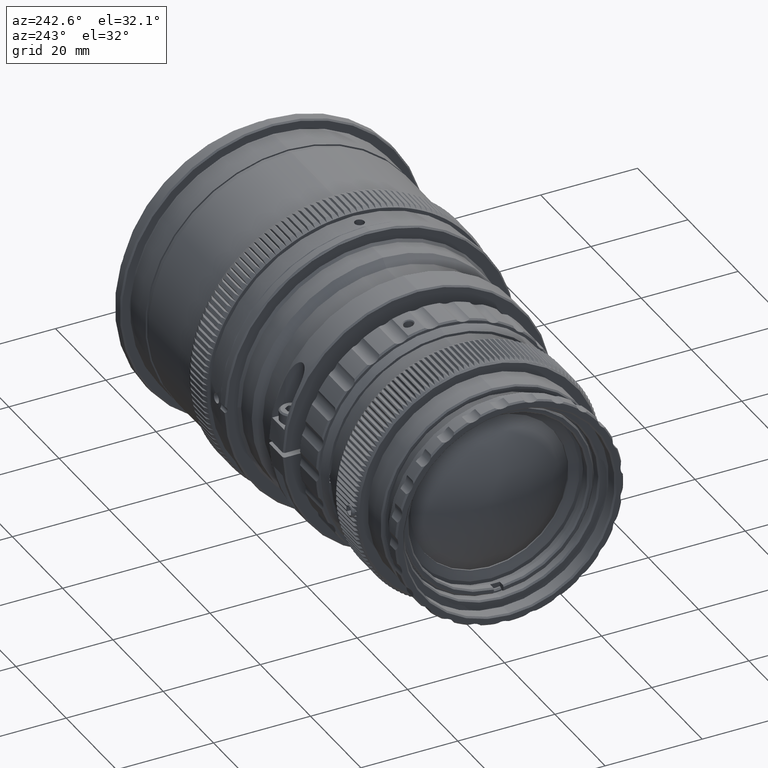
[diagram: clean part render]
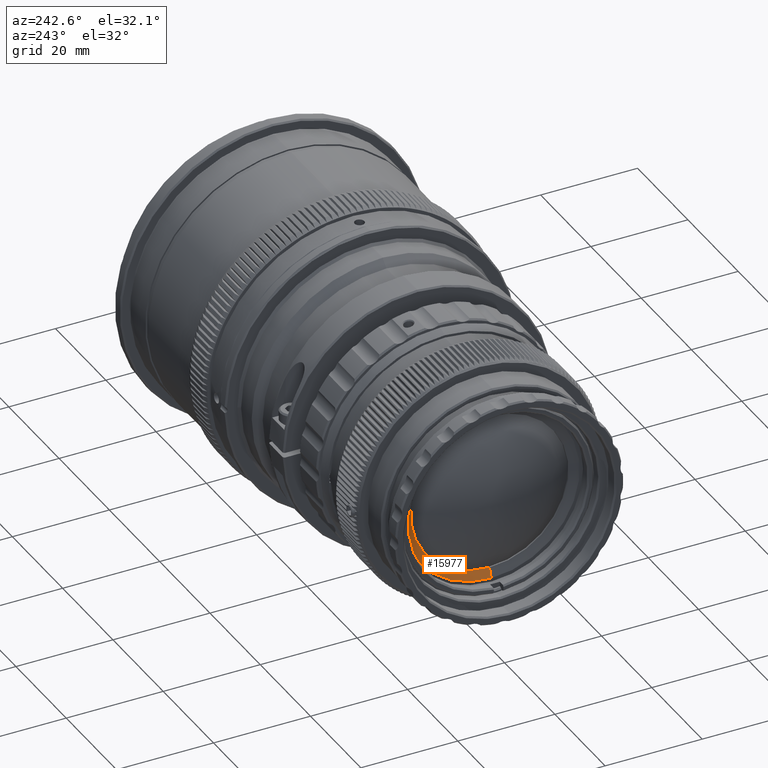
[diagram: same view with one face highlighted and labeled with its STEP entity id]
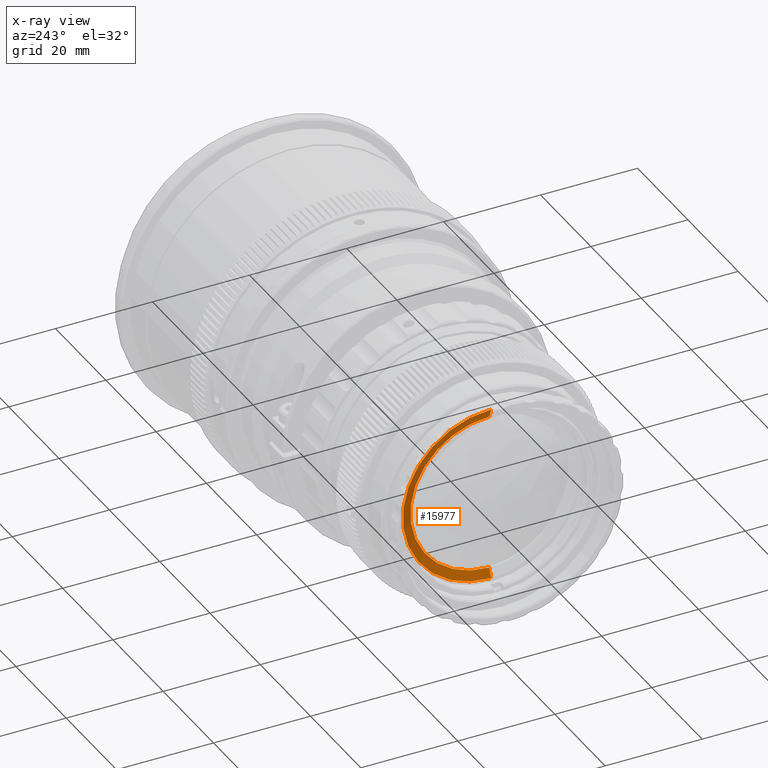
[diagram: x-ray of the same camera — body ghosted, the highlighted face saturated]
A machine part, auxiliary view. The second image highlights one B-rep face of the part: STEP entity #15977.
The next image is the same camera in x-ray: the body ghosted, the highlighted face saturated — about 0% of this face is hidden behind the body in this view.
In plain terms, the highlighted conical surface has half-angle 70 deg.
Its self-contained STEP definition (entity closure, byte-faithful):
#1714 = VECTOR ( 'NONE', #54373, 1000.000000000000100 ) ;
#5786 = DIRECTION ( 'NONE',  ( -1.000000000000000000, 0.0000000000000000000, 0.0000000000000000000 ) ) ;
#8961 = EDGE_CURVE ( 'NONE', #47180, #42818, #67975, .T. ) ;
#11285 = CONICAL_SURFACE ( 'NONE', #55470, 18.22323419361825400, 1.221730476396033300 ) ;
#13312 = EDGE_CURVE ( 'NONE', #22842, #68392, #78025, .T. ) ;
#15977 = ADVANCED_FACE ( 'NONE', ( #31142 ), #11285, .F. ) ;
#18520 = ORIENTED_EDGE ( 'NONE', *, *, #80652, .T. ) ;
#19162 = VECTOR ( 'NONE', #43083, 1000.000000000000100 ) ;
#21227 = CARTESIAN_POINT ( 'NONE',  ( -53.96587006350188200, 1.825251799141594000E-013, -16.30000000000000100 ) ) ;
#22842 = VERTEX_POINT ( 'NONE', #21227 ) ;
#24139 = DIRECTION ( 'NONE',  ( 0.0000000000000000000, 0.0000000000000000000, 1.000000000000000000 ) ) ;
#26725 = CARTESIAN_POINT ( 'NONE',  ( -53.96587006350188200, 1.804112415015879400E-013, 6.708764282121120600E-016 ) ) ;
#31142 = FACE_OUTER_BOUND ( 'NONE', #34651, .T. ) ;
#31704 = AXIS2_PLACEMENT_3D ( 'NONE', #48745, #74008, #35146 ) ;
#33406 = DIRECTION ( 'NONE',  ( 1.000000000000000000, 0.0000000000000000000, 0.0000000000000000000 ) ) ;
#34651 = EDGE_LOOP ( 'NONE', ( #82279, #49267, #18520, #49514 ) ) ;
#35146 = DIRECTION ( 'NONE',  ( 0.0000000000000000000, 0.0000000000000000000, 1.000000000000000000 ) ) ;
#36500 = CARTESIAN_POINT ( 'NONE',  ( -54.66587006350188500, 1.826429440441206700E-013, -18.22323419361825400 ) ) ;
#38070 = LINE ( 'NONE', #36500, #19162 ) ;
#42818 = VERTEX_POINT ( 'NONE', #79742 ) ;
#43083 = DIRECTION ( 'NONE',  ( -0.3420201433256662700, 1.150791560227851500E-016, -0.9396926207859092100 ) ) ;
#43809 = CARTESIAN_POINT ( 'NONE',  ( -54.66587006350188500, 1.804112415015879400E-013, 6.708764282121120600E-016 ) ) ;
#44039 = AXIS2_PLACEMENT_3D ( 'NONE', #26725, #33406, #77779 ) ;
#47151 = CARTESIAN_POINT ( 'NONE',  ( -54.66587006350188500, 1.804112415015879400E-013, 18.22323419361825400 ) ) ;
#47180 = VERTEX_POINT ( 'NONE', #51000 ) ;
#48745 = CARTESIAN_POINT ( 'NONE',  ( -54.66587006350188500, 1.804112415015879400E-013, 6.708764282121120600E-016 ) ) ;
#49267 = ORIENTED_EDGE ( 'NONE', *, *, #13312, .T. ) ;
#49514 = ORIENTED_EDGE ( 'NONE', *, *, #8961, .F. ) ;
#51000 = CARTESIAN_POINT ( 'NONE',  ( -54.66587006350188500, 1.826429440441206700E-013, -18.22323419361825400 ) ) ;
#51797 = CARTESIAN_POINT ( 'NONE',  ( -53.96587006350188200, 1.804112415015879400E-013, 16.30000000000000100 ) ) ;
#54027 = EDGE_CURVE ( 'NONE', #22842, #47180, #38070, .T. ) ;
#54373 = DIRECTION ( 'NONE',  ( -0.3420201433256662700, 0.0000000000000000000, 0.9396926207859092100 ) ) ;
#55470 = AXIS2_PLACEMENT_3D ( 'NONE', #43809, #5786, #24139 ) ;
#67975 = CIRCLE ( 'NONE', #31704, 18.22323419361825400 ) ;
#68348 = LINE ( 'NONE', #47151, #1714 ) ;
#68392 = VERTEX_POINT ( 'NONE', #51797 ) ;
#74008 = DIRECTION ( 'NONE',  ( 1.000000000000000000, -0.0000000000000000000, -0.0000000000000000000 ) ) ;
#77779 = DIRECTION ( 'NONE',  ( 0.0000000000000000000, 0.0000000000000000000, 1.000000000000000000 ) ) ;
#78025 = CIRCLE ( 'NONE', #44039, 16.30000000000000100 ) ;
#79742 = CARTESIAN_POINT ( 'NONE',  ( -54.66587006350188500, 1.804112415015879400E-013, 18.22323419361825400 ) ) ;
#80652 = EDGE_CURVE ( 'NONE', #68392, #42818, #68348, .T. ) ;
#82279 = ORIENTED_EDGE ( 'NONE', *, *, #54027, .F. ) ;